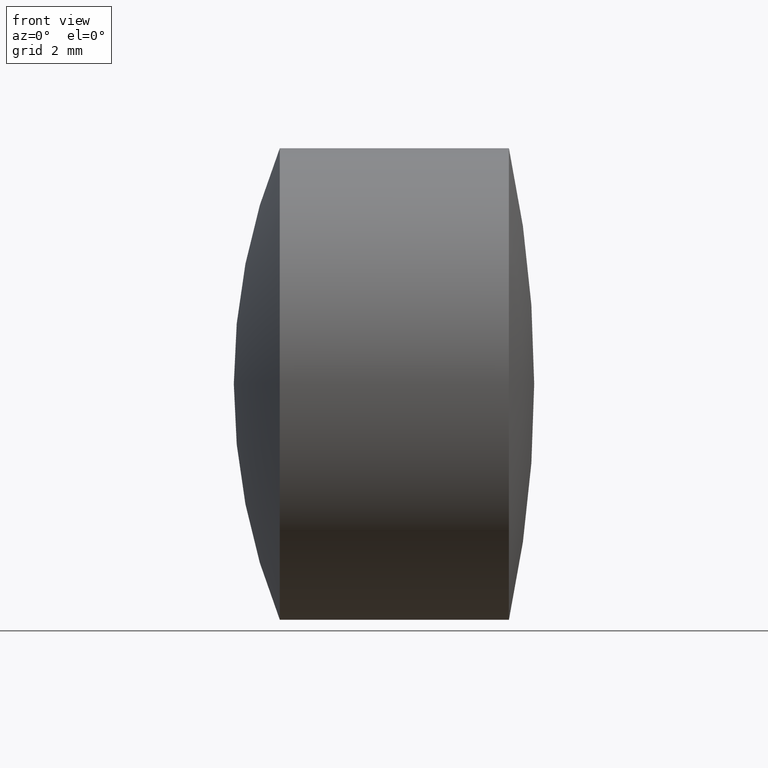
[diagram: clean part render]
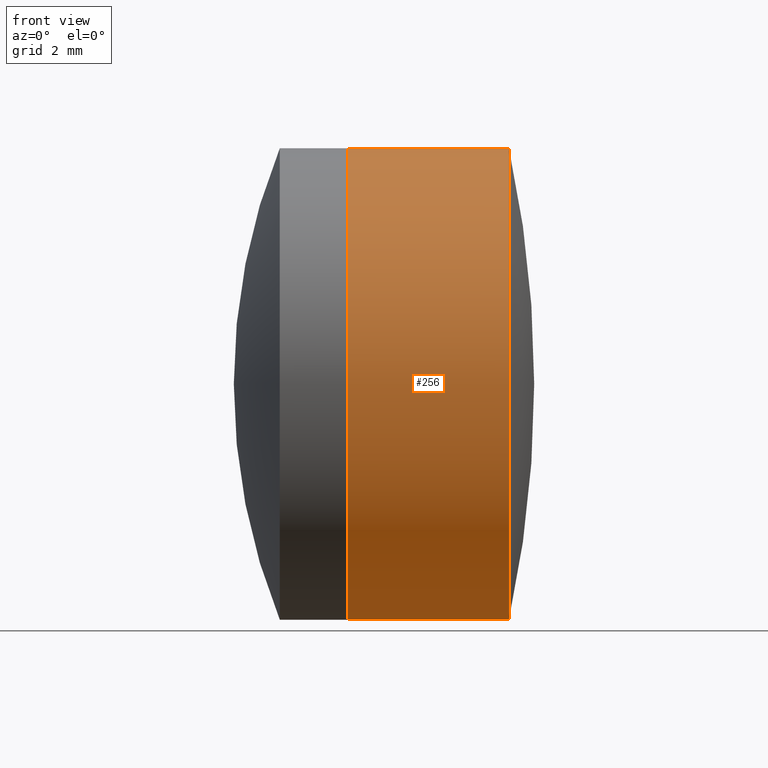
[diagram: same view with one face highlighted and labeled with its STEP entity id]
A machine part, front view. The second image highlights one B-rep face of the part: STEP entity #256.
In plain terms, the highlighted cylindrical surface (partial cylindrical patch) has radius 5 mm, axis along (-1, -0, -0).
Its self-contained STEP definition (entity closure, byte-faithful):
#5 = DIRECTION ( 'NONE',  ( -1.000000000000000000, -0.0000000000000000000, -0.0000000000000000000 ) ) ;
#17 = ORIENTED_EDGE ( 'NONE', *, *, #332, .F. ) ;
#18 = LINE ( 'NONE', #128, #74 ) ;
#43 = VERTEX_POINT ( 'NONE', #213 ) ;
#45 = EDGE_LOOP ( 'NONE', ( #80, #182, #167, #17 ) ) ;
#64 = VECTOR ( 'NONE', #289, 1000.000000000000000 ) ;
#68 = DIRECTION ( 'NONE',  ( 0.0000000000000000000, 0.0000000000000000000, 1.000000000000000000 ) ) ;
#74 = VECTOR ( 'NONE', #230, 1000.000000000000000 ) ;
#80 = ORIENTED_EDGE ( 'NONE', *, *, #301, .F. ) ;
#90 = LINE ( 'NONE', #171, #64 ) ;
#95 = CYLINDRICAL_SURFACE ( 'NONE', #239, 4.999999999999998200 ) ;
#99 = DIRECTION ( 'NONE',  ( -1.000000000000000000, -0.0000000000000000000, -0.0000000000000000000 ) ) ;
#127 = CARTESIAN_POINT ( 'NONE',  ( 4.056503346783539000, 0.0000000000000000000, 4.999999999999997300 ) ) ;
#128 = CARTESIAN_POINT ( 'NONE',  ( -0.5519199926577972300, 0.0000000000000000000, 4.999999999999998200 ) ) ;
#148 = CARTESIAN_POINT ( 'NONE',  ( 4.056503346783539000, 6.123233995736764300E-016, -4.999999999999997300 ) ) ;
#150 = DIRECTION ( 'NONE',  ( -1.000000000000000000, -0.0000000000000000000, -0.0000000000000000000 ) ) ;
#167 = ORIENTED_EDGE ( 'NONE', *, *, #343, .T. ) ;
#171 = CARTESIAN_POINT ( 'NONE',  ( -0.5519199926577972300, 6.123233995736764300E-016, -4.999999999999998200 ) ) ;
#172 = FACE_OUTER_BOUND ( 'NONE', #45, .T. ) ;
#180 = CIRCLE ( 'NONE', #210, 4.999999999999999100 ) ;
#182 = ORIENTED_EDGE ( 'NONE', *, *, #277, .T. ) ;
#200 = CARTESIAN_POINT ( 'NONE',  ( 0.6409706677806795700, 0.0000000000000000000, 4.999999999999997300 ) ) ;
#210 = AXIS2_PLACEMENT_3D ( 'NONE', #245, #150, #346 ) ;
#213 = CARTESIAN_POINT ( 'NONE',  ( 0.6409706677806795700, 6.123233995736764300E-016, -4.999999999999997300 ) ) ;
#225 = CARTESIAN_POINT ( 'NONE',  ( -0.5519199926577972300, 0.0000000000000000000, 0.0000000000000000000 ) ) ;
#230 = DIRECTION ( 'NONE',  ( -1.000000000000000000, -0.0000000000000000000, -0.0000000000000000000 ) ) ;
#231 = AXIS2_PLACEMENT_3D ( 'NONE', #260, #99, #288 ) ;
#239 = AXIS2_PLACEMENT_3D ( 'NONE', #225, #5, #68 ) ;
#245 = CARTESIAN_POINT ( 'NONE',  ( 0.6409706677806800100, 0.0000000000000000000, 0.0000000000000000000 ) ) ;
#256 = ADVANCED_FACE ( 'NONE', ( #172 ), #95, .T. ) ;
#260 = CARTESIAN_POINT ( 'NONE',  ( 4.056503346783539000, 0.0000000000000000000, 0.0000000000000000000 ) ) ;
#277 = EDGE_CURVE ( 'NONE', #310, #340, #335, .T. ) ;
#288 = DIRECTION ( 'NONE',  ( 0.0000000000000000000, 0.0000000000000000000, 1.000000000000000000 ) ) ;
#289 = DIRECTION ( 'NONE',  ( -1.000000000000000000, -0.0000000000000000000, -0.0000000000000000000 ) ) ;
#296 = VERTEX_POINT ( 'NONE', #200 ) ;
#301 = EDGE_CURVE ( 'NONE', #310, #43, #90, .T. ) ;
#310 = VERTEX_POINT ( 'NONE', #148 ) ;
#332 = EDGE_CURVE ( 'NONE', #43, #296, #180, .T. ) ;
#335 = CIRCLE ( 'NONE', #231, 4.999999999999997300 ) ;
#340 = VERTEX_POINT ( 'NONE', #127 ) ;
#343 = EDGE_CURVE ( 'NONE', #340, #296, #18, .T. ) ;
#346 = DIRECTION ( 'NONE',  ( 0.0000000000000000000, 0.0000000000000000000, 1.000000000000000000 ) ) ;